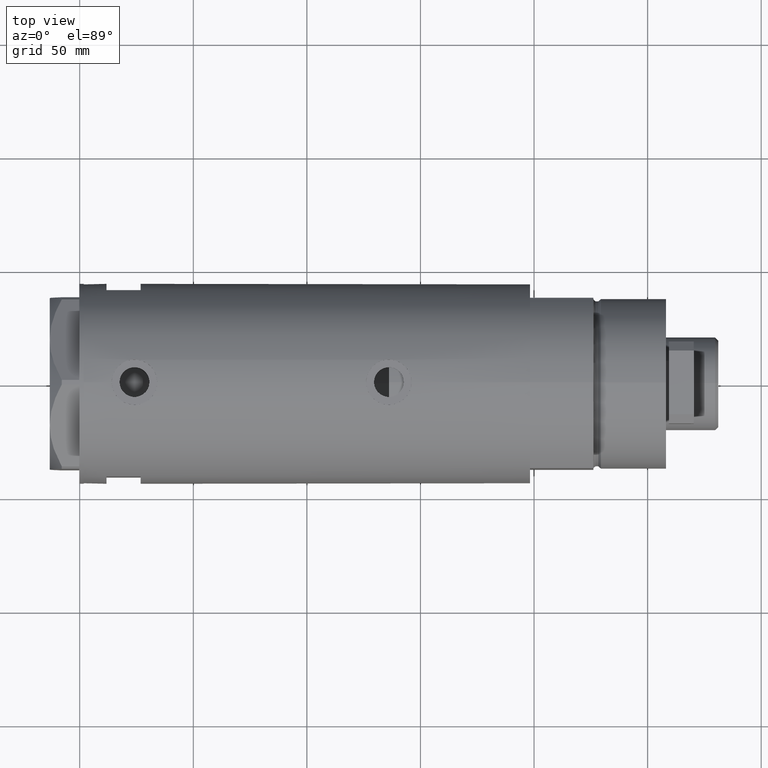
[diagram: clean part render]
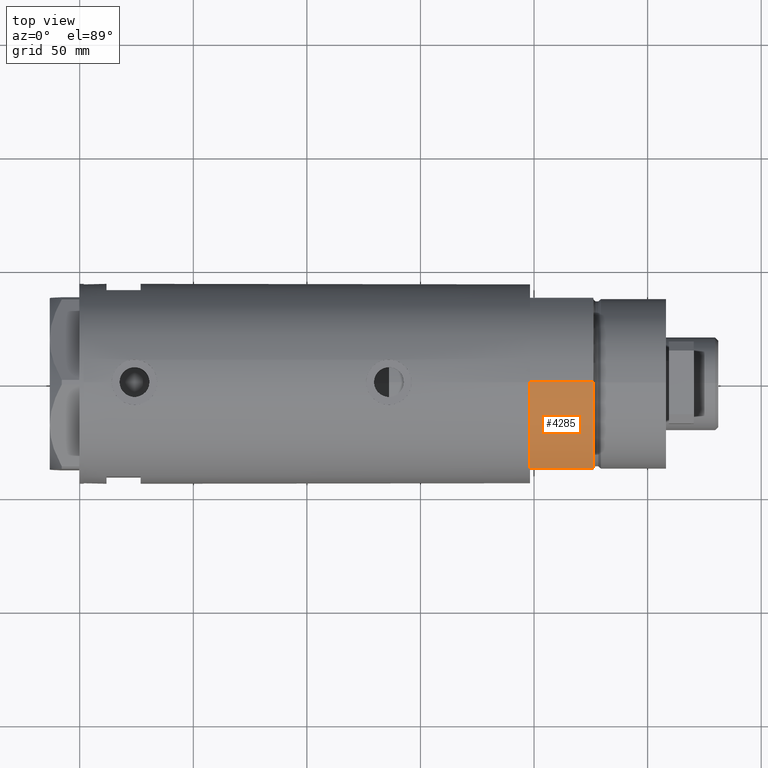
[diagram: same view with one face highlighted and labeled with its STEP entity id]
A machine part, top view. The second image highlights one B-rep face of the part: STEP entity #4285.
In plain terms, the highlighted cylindrical surface (partial cylindrical patch) has radius 44 mm, axis along (-1, -0, 0).
Its self-contained STEP definition (entity closure, byte-faithful):
#180 = ORIENTED_EDGE ( 'NONE', *, *, #1322, .F. ) ;
#233 = EDGE_CURVE ( 'NONE', #3941, #2196, #5155, .T. ) ;
#316 = DIRECTION ( 'NONE',  ( 1.000000000000000000, 0.000000000000000000, 0.000000000000000000 ) ) ;
#380 = AXIS2_PLACEMENT_3D ( 'NONE', #1554, #3637, #3198 ) ;
#722 = CARTESIAN_POINT ( 'NONE',  ( 0.000000000000000000, 0.000000000000000000, 27.89999999999999858 ) ) ;
#758 = LINE ( 'NONE', #3194, #2378 ) ;
#1070 = AXIS2_PLACEMENT_3D ( 'NONE', #4805, #5227, #316 ) ;
#1159 = EDGE_CURVE ( 'NONE', #2196, #4307, #1835, .T. ) ;
#1243 = FACE_OUTER_BOUND ( 'NONE', #5283, .T. ) ;
#1322 = EDGE_CURVE ( 'NONE', #4878, #4307, #3752, .T. ) ;
#1393 = DIRECTION ( 'NONE',  ( -0.000000000000000000, -0.000000000000000000, 1.000000000000000000 ) ) ;
#1554 = CARTESIAN_POINT ( 'NONE',  ( 0.000000000000000000, 0.000000000000000000, 27.89999999999999858 ) ) ;
#1816 = CARTESIAN_POINT ( 'NONE',  ( -44.00000000000000000, 0.000000000000000000, 27.89999999999999858 ) ) ;
#1835 = LINE ( 'NONE', #2634, #3496 ) ;
#1953 = AXIS2_PLACEMENT_3D ( 'NONE', #722, #2380, #2347 ) ;
#2000 = ORIENTED_EDGE ( 'NONE', *, *, #1159, .T. ) ;
#2005 = DIRECTION ( 'NONE',  ( -0.000000000000000000, -0.000000000000000000, -1.000000000000000000 ) ) ;
#2070 = CARTESIAN_POINT ( 'NONE',  ( -44.00000000000000000, 0.000000000000000000, 0.000000000000000000 ) ) ;
#2196 = VERTEX_POINT ( 'NONE', #2388 ) ;
#2310 = ORIENTED_EDGE ( 'NONE', *, *, #3883, .T. ) ;
#2347 = DIRECTION ( 'NONE',  ( -1.000000000000000000, 0.000000000000000000, 0.000000000000000000 ) ) ;
#2378 = VECTOR ( 'NONE', #2005, 1000.000000000000000 ) ;
#2380 = DIRECTION ( 'NONE',  ( -0.000000000000000000, -0.000000000000000000, -1.000000000000000000 ) ) ;
#2388 = CARTESIAN_POINT ( 'NONE',  ( -23.01629857296780557, -37.50000000000000000, 0.000000000000000000 ) ) ;
#2634 = CARTESIAN_POINT ( 'NONE',  ( -23.01629857296780557, -37.50000000000000000, 0.000000000000000000 ) ) ;
#2778 = CARTESIAN_POINT ( 'NONE',  ( -23.01629857296780557, -37.50000000000000000, 27.89999999999999858 ) ) ;
#3194 = CARTESIAN_POINT ( 'NONE',  ( -44.00000000000000000, 0.000000000000000000, 27.89999999999999858 ) ) ;
#3198 = DIRECTION ( 'NONE',  ( 1.000000000000000000, 0.000000000000000000, 0.000000000000000000 ) ) ;
#3496 = VECTOR ( 'NONE', #1393, 1000.000000000000000 ) ;
#3637 = DIRECTION ( 'NONE',  ( 0.000000000000000000, 0.000000000000000000, 1.000000000000000000 ) ) ;
#3752 = CIRCLE ( 'NONE', #380, 44.00000000000000000 ) ;
#3883 = EDGE_CURVE ( 'NONE', #4878, #3941, #758, .T. ) ;
#3941 = VERTEX_POINT ( 'NONE', #2070 ) ;
#4285 = ADVANCED_FACE ( 'NONE', ( #1243 ), #4362, .T. ) ;
#4307 = VERTEX_POINT ( 'NONE', #2778 ) ;
#4362 = CYLINDRICAL_SURFACE ( 'NONE', #1953, 44.00000000000000000 ) ;
#4640 = ORIENTED_EDGE ( 'NONE', *, *, #233, .T. ) ;
#4805 = CARTESIAN_POINT ( 'NONE',  ( 0.000000000000000000, 0.000000000000000000, 0.000000000000000000 ) ) ;
#4878 = VERTEX_POINT ( 'NONE', #1816 ) ;
#5155 = CIRCLE ( 'NONE', #1070, 44.00000000000000000 ) ;
#5227 = DIRECTION ( 'NONE',  ( 0.000000000000000000, 0.000000000000000000, 1.000000000000000000 ) ) ;
#5283 = EDGE_LOOP ( 'NONE', ( #180, #2310, #4640, #2000 ) ) ;